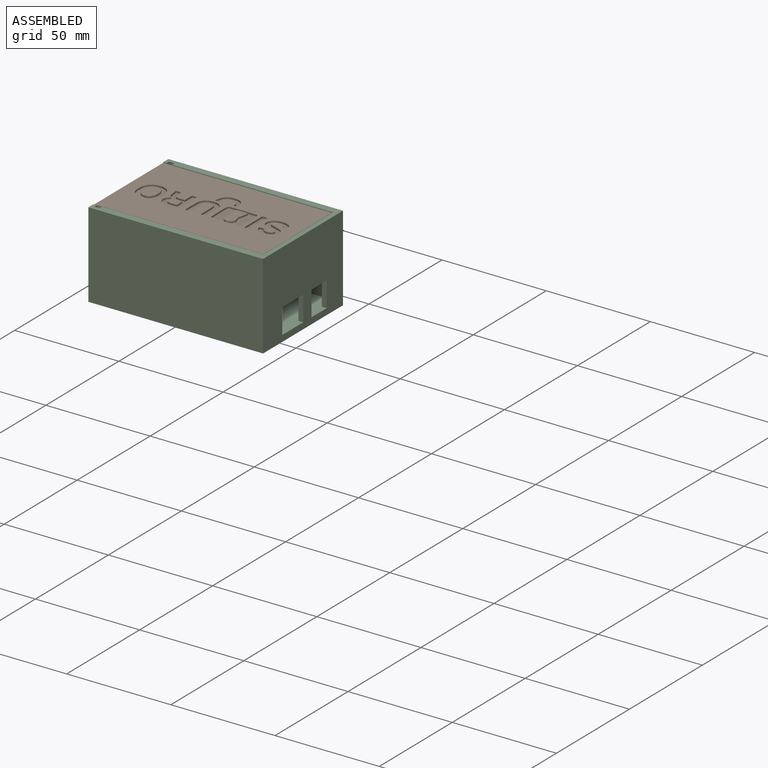
[diagram: assembled view]
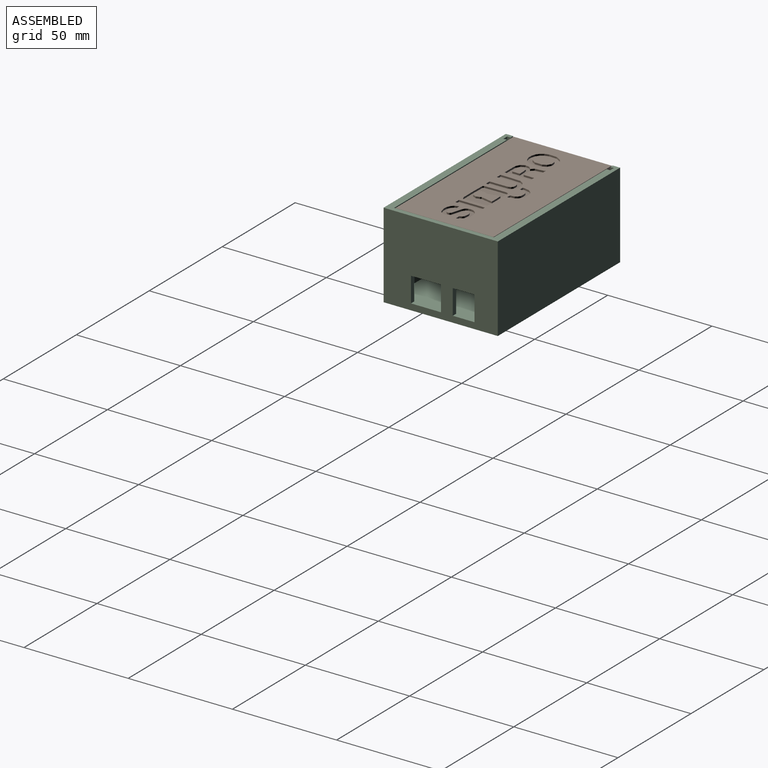
[diagram: assembled view, second angle]
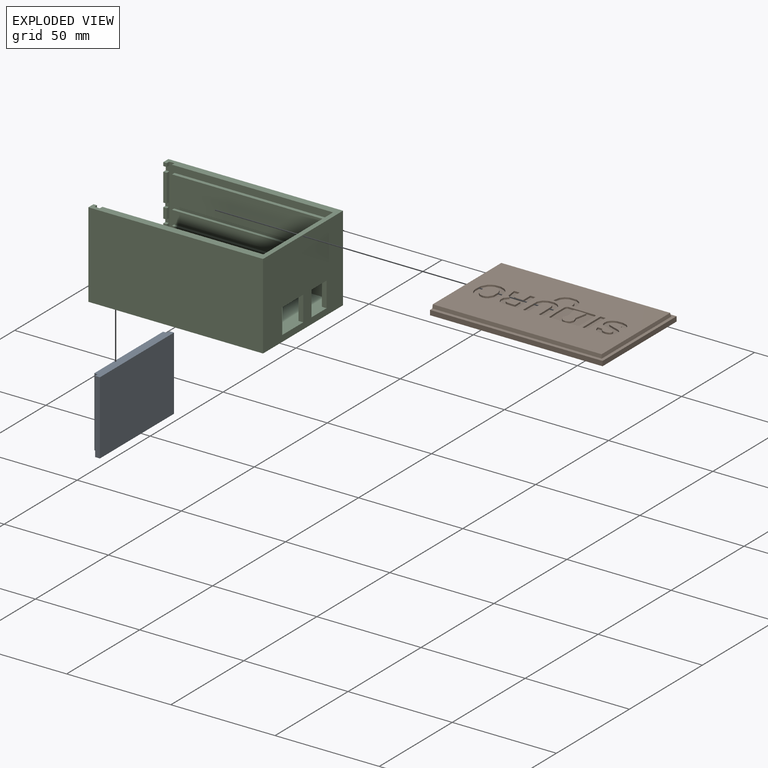
[diagram: exploded view]
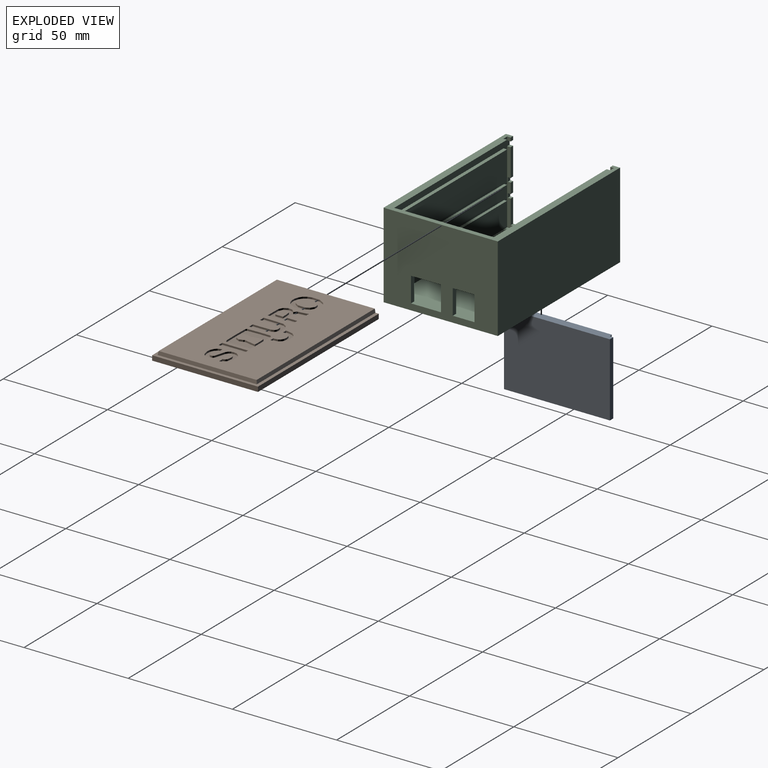
[diagram: exploded view, second angle]
ASSEMBLY  parts=3 mates=2
PART A: 52 faces, bbox 4x50.8x35.2 mm
  f0: plane 47x33.4mm, normal (1,0,0), area 1525.3mm2, adj f6,f7,f8,f9,f10,f11,f12,f13
  f1: plane 50.8x2.3mm, normal (0,0,-1), area 116.8mm2, adj f2,f3,f4,f5
  f2: plane 50.8x35.2mm, normal (1,0,0), area 184.1mm2, adj f1,f3,f5,f6,f7,f8,f9
  f3: plane 35.2x2.3mm, normal (0,1,0), area 81mm2, adj f1,f2,f4,f6
  f4: plane 50.8x35.2mm, normal (-1,0,0), area 1788.2mm2, adj f1,f3,f5,f6
  f5: plane 35.2x2.3mm, normal (0,-1,0), area 81mm2, adj f1,f2,f4,f6
  f6: plane 50.8x4mm, normal (0,0,1), area 197.2mm2, adj f0,f2,f3,f4,f5,f7,f9
  f7: plane 33.7x1.7mm, normal (0.17,-0.98,0), area 57.9mm2, adj f0,f2,f6,f8
  f8: plane 47.6x1.7mm, normal (0.17,0,-0.98), area 81.7mm2, adj f0,f2,f7,f9
  f9: plane 33.7x1.7mm, normal (0.17,0.98,0), area 57.9mm2, adj f0,f2,f6,f8
  f10: plane 1.45x0.8mm, normal (0,1,0), area 1.2mm2, adj f0,f11,f13,f14
  f11: plane 4.45x0.8mm, normal (0,0,1), area 3.6mm2, adj f0,f10,f12,f14
  f12: plane 1.45x0.8mm, normal (0,-1,0), area 1.2mm2, adj f0,f11,f13,f14
  f13: plane 4.45x0.8mm, normal (0,0,-1), area 3.6mm2, adj f0,f10,f12,f14
  f14: plane 4.45x1.45mm, normal (1,0,0), area 6.5mm2, adj f10,f11,f12,f13
  f15: plane 1.45x0.8mm, normal (0,1,0), area 1.2mm2, adj f0,f16,f18,f19
  f16: plane 4.45x0.8mm, normal (0,0,1), area 3.6mm2, adj f0,f15,f17,f19
  f17: plane 1.45x0.8mm, normal (0,-1,0), area 1.2mm2, adj f0,f16,f18,f19
  f18: plane 4.45x0.8mm, normal (0,0,-1), area 3.6mm2, adj f0,f15,f17,f19
  f19: plane 4.45x1.45mm, normal (1,0,0), area 6.5mm2, adj f15,f16,f17,f18
  f20: plane 1.49x0.8mm, normal (0,1,0), area 1.2mm2, adj f0,f21,f39,f40
  f21: plane 1.14x0.8mm, normal (0,-0.01,1), area 0.9mm2, adj f0,f20,f22,f40
  f22: plane 1.38x0.8mm, normal (0,-0.06,1), area 1.1mm2, adj f0,f21,f23,f40
  f23: plane 1.24x0.8mm, normal (0,-0.52,0.85), area 1.2mm2, adj f0,f22,f24,f40
  f24: plane 0.8x0.58mm, normal (0,-0.82,0.57), area 0.6mm2, adj f0,f23,f25,f40
  f25: plane 1.02x0.8mm, normal (0,-0.97,0.26), area 0.8mm2, adj f0,f24,f26,f40
  f26: plane 1.59x0.8mm, normal (0,-0.96,-0.27), area 1.3mm2, adj f0,f25,f27,f40
  f27: plane 1.35x1.01mm, normal (0,-0.6,-0.8), area 1.3mm2, adj f0,f26,f28,f40
  f28: plane 0.8x0.29mm, normal (0,-0.33,-0.94), area 0.2mm2, adj f0,f27,f29,f40
  f29: plane 1.18x0.8mm, normal (0,-0.01,-1), area 0.9mm2, adj f0,f28,f30,f40
  f30: plane 1.18x0.8mm, normal (0,-0.01,-1), area 0.9mm2, adj f0,f29,f31,f40
  f31: plane 1.45x0.8mm, normal (0,1,0), area 1.2mm2, adj f0,f30,f32,f40
  f32: plane 1.08x0.8mm, normal (0,0.01,1), area 0.9mm2, adj f0,f31,f33,f40
  f33: plane 1.08x0.8mm, normal (0,0.01,1), area 0.9mm2, adj f0,f32,f34,f40
  f34: plane 0.8x0.21mm, normal (0,0.44,0.9), area 0.2mm2, adj f0,f33,f35,f40
  f35: plane 0.82x0.8mm, normal (0,0.8,0.6), area 0.8mm2, adj f0,f34,f36,f40
  f36: plane 0.8x0.72mm, normal (0,0.98,-0.19), area 0.6mm2, adj f0,f35,f37,f40
  f37: plane 0.8x0.56mm, normal (0,0.66,-0.75), area 0.6mm2, adj f0,f36,f38,f40
  f38: plane 1.22x0.8mm, normal (0,0.05,-1), area 1mm2, adj f0,f37,f39,f40
  f39: plane 1.05x0.8mm, normal (0,0,-1), area 0.8mm2, adj f0,f20,f38,f40
  f40: plane 5.17x4.44mm, normal (1,0,0), area 13.7mm2, adj f20,f21,f22,f23,f24,f25,f26,f27
  f41: plane 3.72x3.68mm, normal (0,0.7,0.71), area 4.2mm2, adj f0,f42,f50,f51
  f42: plane 2.07x0.8mm, normal (0,0,1), area 1.7mm2, adj f0,f41,f43,f51
  f43: plane 2.23x2.23mm, normal (0,-0.71,-0.71), area 2.5mm2, adj f0,f42,f44,f51
  f44: plane 2.23x2.23mm, normal (0,-0.71,-0.71), area 2.5mm2, adj f0,f43,f45,f51
  f45: plane 2.21x2.21mm, normal (0,-0.71,0.71), area 2.5mm2, adj f0,f44,f46,f51
  f46: plane 2.21x2.21mm, normal (0,-0.71,0.71), area 2.5mm2, adj f0,f45,f47,f51
  f47: plane 2.07x0.8mm, normal (0,0,-1), area 1.7mm2, adj f0,f46,f48,f51
  f48: plane 1.85x1.85mm, normal (0,0.71,-0.71), area 2.1mm2, adj f0,f47,f49,f51
  f49: plane 1.85x1.85mm, normal (0,0.71,-0.71), area 2.1mm2, adj f0,f48,f50,f51
  f50: plane 1.49x0.8mm, normal (0,1,0), area 1.2mm2, adj f0,f41,f49,f51
  f51: plane 8.87x5.8mm, normal (1,0,0), area 17.9mm2, adj f41,f42,f43,f44,f45,f46,f47,f48
PART B: 210 faces, bbox 4x50.8x82.8 mm
  f0: plane 81x47mm, normal (1,0,0), area 3217.7mm2, adj f6,f7,f8,f9,f10,f11,f12,f13
  f1: plane 50.8x2.3mm, normal (0,0,-1), area 116.8mm2, adj f2,f3,f4,f5
  f2: plane 82.8x50.8mm, normal (1,0,0), area 336.4mm2, adj f1,f3,f5,f6,f7,f8,f9
  f3: plane 82.8x2.3mm, normal (0,1,0), area 190.4mm2, adj f1,f2,f4,f6
  f4: plane 82.8x50.8mm, normal (-1,0,0), area 4206.2mm2, adj f1,f3,f5,f6
  f5: plane 82.8x2.3mm, normal (0,-1,0), area 190.4mm2, adj f1,f2,f4,f6
  f6: plane 50.8x4mm, normal (0,0,1), area 197.2mm2, adj f0,f2,f3,f4,f5,f7,f9
  f7: plane 81.3x1.7mm, normal (0.17,-0.98,0), area 140.1mm2, adj f0,f2,f6,f8
  f8: plane 47.6x1.7mm, normal (0.17,0,-0.98), area 81.7mm2, adj f0,f2,f7,f9
  f9: plane 81.3x1.7mm, normal (0.17,0.98,0), area 140.1mm2, adj f0,f2,f6,f8
  f10: plane 2.45x0.8mm, normal (0,-1,0), area 2mm2, adj f0,f11,f13,f14
  f11: plane 12.44x0.8mm, normal (0,0,-1), area 9.9mm2, adj f0,f10,f12,f14
  f12: plane 2.45x0.8mm, normal (0,1,0), area 2mm2, adj f0,f11,f13,f14
  f13: plane 12.44x0.8mm, normal (0,0,1), area 9.9mm2, adj f0,f10,f12,f14
  f14: plane 12.44x2.45mm, normal (1,0,0), area 30.5mm2, adj f10,f11,f12,f13
  f15: plane 1.94x0.8mm, normal (0,-0.95,0.32), area 1.6mm2, adj f0,f16,f35,f36
  f16: plane 2.77x0.8mm, normal (0,-1,-0.05), area 2.2mm2, adj f0,f15,f17,f36
  f17: plane 2.02x1.06mm, normal (0,-0.88,-0.47), area 1.8mm2, adj f0,f16,f18,f36
  f18: plane 1.9x1.12mm, normal (0,-0.51,-0.86), area 1.8mm2, adj f0,f17,f19,f36
  f19: plane 5.05x0.8mm, normal (0,-0.04,-1), area 4mm2, adj f0,f18,f20,f36
  f20: plane 4.55x0.8mm, normal (0,-0.01,-1), area 3.6mm2, adj f0,f19,f21,f36
  f21: plane 2.55x0.8mm, normal (0,1,0), area 2mm2, adj f0,f20,f22,f36
  f22: plane 4.63x0.8mm, normal (0,0.01,1), area 3.7mm2, adj f0,f21,f23,f36
  f23: plane 4.97x0.8mm, normal (0,0.04,1), area 4mm2, adj f0,f22,f24,f36
  f24: plane 1x0.9mm, normal (0,0.74,0.67), area 1.1mm2, adj f0,f23,f25,f36
  f25: plane 1.31x0.8mm, normal (0,0.99,0.15), area 1.1mm2, adj f0,f24,f26,f36
  f26: plane 1.14x0.8mm, normal (0,0.99,-0.12), area 0.9mm2, adj f0,f25,f27,f36
  f27: plane 0.8x0.74mm, normal (0,0.79,-0.61), area 0.8mm2, adj f0,f26,f28,f36
  f28: plane 1.25x0.8mm, normal (0,0.37,-0.93), area 1.1mm2, adj f0,f27,f29,f36
  f29: plane 4.4x0.8mm, normal (0,0.02,-1), area 3.5mm2, adj f0,f28,f30,f36
  f30: plane 4.33x0.8mm, normal (0,0,-1), area 3.5mm2, adj f0,f29,f31,f36
  f31: plane 2.45x0.8mm, normal (0,1,0), area 2mm2, adj f0,f30,f32,f36
  f32: plane 4.46x0.8mm, normal (0,0,1), area 3.6mm2, adj f0,f31,f33,f36
  f33: plane 4.51x0.8mm, normal (0,-0.02,1), area 3.6mm2, adj f0,f32,f34,f36
  f34: plane 1.56x0.8mm, normal (0,-0.25,0.97), area 1.3mm2, adj f0,f33,f35,f36
  f35: plane 1.51x1.47mm, normal (0,-0.7,0.72), area 1.7mm2, adj f0,f15,f34,f36
  f36: plane 12.69x10mm, normal (1,0,0), area 66.9mm2, adj f15,f16,f17,f18,f19,f20,f21,f22
  f37: plane 2.11x1.19mm, normal (0,-0.87,0.49), area 1.9mm2, adj f0,f38,f56,f57
  f38: plane 3.42x0.8mm, normal (0,-1,0), area 2.7mm2, adj f0,f37,f39,f57
  f39: plane 1.77x0.89mm, normal (0,-0.89,-0.45), area 1.6mm2, adj f0,f38,f40,f57
  f40: plane 1.48x1.26mm, normal (0,-0.65,-0.76), area 1.6mm2, adj f0,f39,f41,f57
  f41: plane 2.51x0.8mm, normal (0,-0.22,-0.97), area 2.1mm2, adj f0,f40,f42,f57
  f42: plane 0.91x0.8mm, normal (0,0,-1), area 0.7mm2, adj f0,f41,f43,f57
  f43: plane 1.95x0.8mm, normal (0,1,0), area 1.6mm2, adj f0,f42,f44,f57
  f44: plane 0.84x0.8mm, normal (0,0,1), area 0.7mm2, adj f0,f43,f45,f57
  f45: plane 1.31x0.8mm, normal (0,0.13,0.99), area 1.1mm2, adj f0,f44,f46,f57
  f46: plane 1.55x1.42mm, normal (0,0.68,0.74), area 1.7mm2, adj f0,f45,f47,f57
  f47: plane 1.62x0.8mm, normal (0,0.99,0.16), area 1.3mm2, adj f0,f46,f48,f57
  f48: plane 1.62x0.8mm, normal (0,1,-0.09), area 1.3mm2, adj f0,f47,f49,f57
  f49: plane 1.06x0.8mm, normal (0,0.84,-0.54), area 1mm2, adj f0,f48,f50,f57
  f50: plane 1.03x0.8mm, normal (0,0.54,-0.84), area 1mm2, adj f0,f49,f51,f57
  f51: plane 1.24x0.8mm, normal (0,0.14,-0.99), area 1mm2, adj f0,f50,f52,f57
  f52: plane 0.87x0.8mm, normal (0,0.05,-1), area 0.7mm2, adj f0,f51,f53,f57
  f53: plane 1.95x0.8mm, normal (0,1,0), area 1.6mm2, adj f0,f52,f54,f57
  f54: plane 0.99x0.8mm, normal (0,-0.05,1), area 0.8mm2, adj f0,f53,f55,f57
  f55: plane 1.54x0.8mm, normal (0,-0.14,0.99), area 1.2mm2, adj f0,f54,f56,f57
  f56: plane 2.06x1.28mm, normal (0,-0.53,0.85), area 1.9mm2, adj f0,f37,f55,f57
  f57: plane 10.69x5.79mm, normal (1,0,0), area 29mm2, adj f37,f38,f39,f40,f41,f42,f43,f44
  f58: plane 2.95x0.8mm, normal (0,1,0.05), area 2.4mm2, adj f59,f89,f90,f207
  f59: plane 3x0.8mm, normal (0,1,-0.02), area 2.4mm2, adj f58,f60,f90,f207
  f60: plane 2x0.8mm, normal (0,-0.18,-0.98), area 1.6mm2, adj f59,f61,f90,f207
  f61: plane 2.84x0.8mm, normal (0,-0.2,-0.98), area 2.3mm2, adj f60,f62,f90,f207
  f62: plane 0.91x0.8mm, normal (0,-0.2,-0.98), area 0.7mm2, adj f61,f63,f90,f207
  f63: plane 0.8x0.39mm, normal (0,0.61,-0.79), area 0.4mm2, adj f62,f64,f90,f207
  f64: plane 1.87x0.8mm, normal (0,0.28,-0.96), area 1.6mm2, adj f63,f65,f90,f207
  f65: plane 1.71x0.8mm, normal (0,-0.4,-0.92), area 1.5mm2, adj f64,f66,f90,f207
  f66: plane 1.71x0.8mm, normal (0,-0.91,-0.41), area 1.5mm2, adj f65,f67,f90,f207
  f67: plane 1.53x0.8mm, normal (0,-0.98,0.2), area 1.2mm2, adj f66,f68,f90,f207
  f68: plane 1.14x1.07mm, normal (0,-0.68,0.73), area 1.2mm2, adj f67,f69,f90,f207
  f69: plane 1.22x0.8mm, normal (0,-0.23,0.97), area 1mm2, adj f68,f70,f90,f207
  f70: plane 1.77x0.8mm, normal (0,0.33,0.94), area 1.5mm2, adj f69,f71,f90,f207
  f71: plane 0.8x0.31mm, normal (0,0.62,0.78), area 0.3mm2, adj f70,f72,f90,f207
  f72: plane 2.75x0.8mm, normal (0,-0.21,0.98), area 2.2mm2, adj f71,f89,f90,f207
  f73: plane 6.48x0.8mm, normal (0,-1,0), area 5.2mm2, adj f0,f74,f88,f90
  f74: plane 0.8x0.29mm, normal (0,-0.83,-0.56), area 0.3mm2, adj f0,f73,f75,f90
  f75: plane 0.8x0.35mm, normal (0,-0.77,-0.64), area 0.4mm2, adj f0,f74,f76,f90
  f76: plane 0.8x0.69mm, normal (0,-0.24,-0.97), area 0.6mm2, adj f0,f75,f77,f90
  f77: plane 5.15x0.8mm, normal (0,-0.01,-1), area 4.1mm2, adj f0,f76,f78,f90
  f78: plane 5.58x0.8mm, normal (0,0.04,-1), area 4.5mm2, adj f0,f77,f79,f90
  f79: plane 0.8x0.47mm, normal (0,0.77,-0.64), area 0.5mm2, adj f0,f78,f80,f90
  f80: plane 6.66x0.8mm, normal (0,1,-0.02), area 5.3mm2, adj f0,f79,f81,f90
  f81: plane 5.99x0.8mm, normal (0,1,0.01), area 4.8mm2, adj f0,f80,f82,f90
  f82: plane 1.14x0.8mm, normal (0,0.94,0.34), area 1mm2, adj f0,f81,f83,f90
  f83: plane 0.8x0.23mm, normal (0,0.68,0.73), area 0.2mm2, adj f0,f82,f84,f90
  f84: plane 5.46x0.8mm, normal (0,0,1), area 4.4mm2, adj f0,f83,f85,f90
  f85: plane 5.74x0.8mm, normal (0,-0.03,1), area 4.6mm2, adj f0,f84,f86,f90
  f86: plane 0.8x0.33mm, normal (0,-0.63,0.78), area 0.3mm2, adj f0,f85,f87,f90
  f87: plane 0.8x0.78mm, normal (0,-0.98,0.2), area 0.6mm2, adj f0,f86,f88,f90
  f88: plane 6.16x0.8mm, normal (0,-1,0.01), area 4.9mm2, adj f0,f73,f87,f90
  f89: plane 2.9x0.8mm, normal (0,-0.2,0.98), area 2.4mm2, adj f58,f72,f90,f207
  f90: plane 14.68x12.44mm, normal (1,0,0), area 131.4mm2, adj f58,f59,f60,f61,f62,f63,f64,f65
  f91: plane 2.36x0.8mm, normal (0,-0.96,0.29), area 2mm2, adj f0,f92,f136,f137
  f92: plane 2.66x0.8mm, normal (0,-1,-0.05), area 2.1mm2, adj f0,f91,f93,f137
  f93: plane 1.29x0.8mm, normal (0,-0.93,-0.36), area 1.1mm2, adj f0,f92,f94,f137
  f94: plane 1.01x0.8mm, normal (0,-0.79,-0.61), area 1mm2, adj f0,f93,f95,f137
  f95: plane 1.03x0.8mm, normal (0,-0.56,-0.83), area 1mm2, adj f0,f94,f96,f137
  f96: plane 1.34x0.8mm, normal (0,-0.17,-0.99), area 1.1mm2, adj f0,f95,f97,f137
  f97: plane 1.29x0.8mm, normal (0,0.1,-1), area 1mm2, adj f0,f96,f98,f137
  f98: plane 0.97x0.8mm, normal (0,0.53,-0.85), area 0.9mm2, adj f0,f97,f99,f137
  f99: plane 1.18x0.8mm, normal (0,0.84,-0.55), area 1.1mm2, adj f0,f98,f100,f137
  f100: plane 2.67x0.8mm, normal (0,0.96,-0.28), area 2.2mm2, adj f0,f99,f101,f137
  f101: plane 2.54x0.8mm, normal (0,0.96,-0.28), area 2.1mm2, adj f0,f100,f102,f137
  f102: plane 0.8x0.54mm, normal (0,0.64,-0.77), area 0.6mm2, adj f0,f101,f103,f137
  f103: plane 0.8x0.69mm, normal (0,0.15,-0.99), area 0.6mm2, adj f0,f102,f104,f137
  f104: plane 0.8x0.67mm, normal (0,-0.32,-0.95), area 0.6mm2, adj f0,f103,f105,f137
  f105: plane 0.8x0.54mm, normal (0,-0.74,-0.68), area 0.6mm2, adj f0,f104,f106,f137
  f106: plane 1.6x0.8mm, normal (0,-0.98,-0.2), area 1.3mm2, adj f0,f105,f107,f137
  f107: plane 1.58x0.8mm, normal (0,-0.98,0.19), area 1.3mm2, adj f0,f106,f108,f137
  f108: plane 0.8x0.73mm, normal (0,-0.74,0.67), area 0.8mm2, adj f0,f107,f109,f137
  f109: plane 0.85x0.8mm, normal (0,-0.34,0.94), area 0.7mm2, adj f0,f108,f110,f137
  f110: plane 1.17x0.8mm, normal (0,-1,0.09), area 0.9mm2, adj f0,f109,f111,f137
  f111: plane 1.17x0.8mm, normal (0,-1,0), area 0.9mm2, adj f0,f110,f112,f137
  f112: plane 0.8x0.47mm, normal (0,0.15,-0.99), area 0.4mm2, adj f0,f111,f113,f137
  f113: plane 1.46x0.8mm, normal (0,0.36,-0.93), area 1.3mm2, adj f0,f112,f114,f137
  f114: plane 1.1x1.1mm, normal (0,0.71,-0.7), area 1.2mm2, adj f0,f113,f115,f137
  f115: plane 1.55x0.8mm, normal (0,0.92,-0.39), area 1.3mm2, adj f0,f114,f116,f137
  f116: plane 1.9x0.8mm, normal (0,1,-0.09), area 1.5mm2, adj f0,f115,f117,f137
  f117: plane 2.51x0.8mm, normal (0,0.97,0.24), area 2.1mm2, adj f0,f116,f118,f137
  f118: plane 0.9x0.8mm, normal (0,0.8,0.6), area 0.9mm2, adj f0,f117,f119,f137
  f119: plane 0.95x0.8mm, normal (0,0.56,0.83), area 0.9mm2, adj f0,f118,f120,f137
  f120: plane 1.58x0.8mm, normal (0,0.17,0.99), area 1.3mm2, adj f0,f119,f121,f137
  f121: plane 1.49x0.8mm, normal (0,-0.16,0.99), area 1.2mm2, adj f0,f120,f122,f137
  f122: plane 1.22x1.2mm, normal (0,-0.7,0.71), area 1.4mm2, adj f0,f121,f123,f137
  f123: plane 2.87x0.92mm, normal (0,-0.95,0.31), area 2.4mm2, adj f0,f122,f124,f137
  f124: plane 2.98x1.07mm, normal (0,-0.94,0.34), area 2.5mm2, adj f0,f123,f125,f137
  f125: plane 0.8x0.78mm, normal (0,-0.33,0.95), area 0.7mm2, adj f0,f124,f126,f137
  f126: plane 0.87x0.8mm, normal (0,0.19,0.98), area 0.7mm2, adj f0,f125,f127,f137
  f127: plane 0.8x0.7mm, normal (0,0.77,0.64), area 0.7mm2, adj f0,f126,f128,f137
  f128: plane 1.12x0.8mm, normal (0,0.96,0.27), area 0.9mm2, adj f0,f127,f129,f137
  f129: plane 2.45x0.8mm, normal (0,0.99,-0.13), area 2mm2, adj f0,f128,f130,f137
  f130: plane 0.8x0.67mm, normal (0,0.77,-0.64), area 0.7mm2, adj f0,f129,f131,f137
  f131: plane 0.8x0.77mm, normal (0,0.4,-0.91), area 0.7mm2, adj f0,f130,f132,f137
  f132: plane 0.8x0.32mm, normal (0,0.16,-0.99), area 0.3mm2, adj f0,f131,f133,f137
  f133: plane 2.34x0.8mm, normal (0,1,0), area 1.9mm2, adj f0,f132,f134,f137
  f134: plane 0.8x0.28mm, normal (0,-0.16,0.99), area 0.2mm2, adj f0,f133,f135,f137
  f135: plane 1.74x0.8mm, normal (0,-0.33,0.94), area 1.5mm2, adj f0,f134,f136,f137
  f136: plane 1.24x1.16mm, normal (0,-0.73,0.68), area 1.4mm2, adj f0,f91,f135,f137
  f137: plane 13x10.13mm, normal (1,0,0), area 66.8mm2, adj f91,f92,f93,f94,f95,f96,f97,f98
  f138: plane 2.05x0.8mm, normal (0,1,0.01), area 1.6mm2, adj f139,f170,f171,f208
  f139: plane 3.65x0.8mm, normal (0,0,-1), area 2.9mm2, adj f138,f140,f171,f208
  f140: plane 1.89x0.8mm, normal (0,-1,0), area 1.5mm2, adj f139,f141,f171,f208
  f141: plane 2.14x0.8mm, normal (0,-1,0.04), area 1.7mm2, adj f140,f142,f171,f208
  f142: plane 0.86x0.8mm, normal (0,-0.89,0.45), area 0.8mm2, adj f141,f143,f171,f208
  f143: plane 1.32x0.8mm, normal (0,-0.32,0.95), area 1.1mm2, adj f142,f144,f171,f208
  f144: plane 0.96x0.8mm, normal (0,0.19,0.98), area 0.8mm2, adj f143,f145,f171,f208
  f145: plane 0.8x0.61mm, normal (0,0.73,0.69), area 0.7mm2, adj f144,f170,f171,f208
  f146: plane 2.37x0.8mm, normal (0,-1,0), area 1.9mm2, adj f0,f147,f169,f171
  f147: plane 5.01x0.8mm, normal (0,0,-1), area 4mm2, adj f0,f146,f148,f171
  f148: plane 1.88x0.8mm, normal (0,-1,0.02), area 1.5mm2, adj f0,f147,f149,f171
  f149: plane 1.72x0.8mm, normal (0,-1,0.05), area 1.4mm2, adj f0,f148,f150,f171
  f150: plane 0.91x0.8mm, normal (0,-0.95,0.31), area 0.8mm2, adj f0,f149,f151,f171
  f151: plane 0.8x0.74mm, normal (0,-0.45,0.89), area 0.7mm2, adj f0,f150,f152,f171
  f152: plane 1.42x0.8mm, normal (0,-0.08,1), area 1.1mm2, adj f0,f151,f153,f171
  f153: plane 1.97x0.8mm, normal (0,-0.08,1), area 1.6mm2, adj f0,f152,f154,f171
  f154: plane 0.8x0.47mm, normal (0,-0.2,0.98), area 0.4mm2, adj f0,f153,f155,f171
  f155: plane 1.35x0.8mm, normal (0,-1,0), area 1.1mm2, adj f0,f154,f156,f171
  f156: plane 1.35x0.8mm, normal (0,-1,-0.05), area 1.1mm2, adj f0,f155,f157,f171
  f157: plane 0.8x0.26mm, normal (0,0.63,-0.78), area 0.3mm2, adj f0,f156,f158,f171
  f158: plane 2.26x0.8mm, normal (0,0.15,-0.99), area 1.8mm2, adj f0,f157,f159,f171
  f159: plane 2.11x0.8mm, normal (0,0.13,-0.99), area 1.7mm2, adj f0,f158,f160,f171
  f160: plane 0.97x0.88mm, normal (0,0.68,-0.74), area 1mm2, adj f0,f159,f161,f171
  f161: plane 0.8x0.42mm, normal (0,0.79,-0.61), area 0.4mm2, adj f0,f160,f162,f171
  f162: plane 0.8x0.34mm, normal (0,-0.81,-0.59), area 0.3mm2, adj f0,f161,f163,f171
  f163: plane 1.32x1.26mm, normal (0,-0.69,-0.72), area 1.5mm2, adj f0,f162,f164,f171
  f164: plane 1.94x0.8mm, normal (0,-0.14,-0.99), area 1.6mm2, adj f0,f163,f165,f171
  f165: plane 1.9x0.96mm, normal (0,0.45,-0.89), area 1.7mm2, adj f0,f164,f166,f171
  f166: plane 1.96x0.97mm, normal (0,0.9,-0.44), area 1.8mm2, adj f0,f165,f167,f171
  f167: plane 3.79x0.8mm, normal (0,1,-0.02), area 3mm2, adj f0,f166,f168,f171
  f168: plane 3.37x0.8mm, normal (0,1,0), area 2.7mm2, adj f0,f167,f169,f171
  f169: plane 12.44x0.8mm, normal (0,0,1), area 9.9mm2, adj f0,f146,f168,f171
  f170: plane 2.47x0.8mm, normal (0,1,0.1), area 2mm2, adj f138,f145,f171,f208
  f171: plane 12.44x10.32mm, normal (1,0,0), area 75.6mm2, adj f138,f139,f140,f141,f142,f143,f144,f145
  f172: plane 1.29x0.8mm, normal (0,0.98,0.22), area 1.1mm2, adj f173,f205,f206,f209
  f173: plane 1.11x0.8mm, normal (0,1,-0.07), area 0.9mm2, adj f172,f174,f206,f209
  f174: plane 1.57x0.97mm, normal (0,0.85,-0.52), area 1.5mm2, adj f173,f175,f206,f209
  f175: plane 1.8x0.89mm, normal (0,0.44,-0.9), area 1.6mm2, adj f174,f176,f206,f209
  f176: plane 3.46x0.8mm, normal (0,-0.01,-1), area 2.8mm2, adj f175,f177,f206,f209
  f177: plane 2.01x1.23mm, normal (0,-0.52,-0.85), area 1.9mm2, adj f176,f178,f206,f209
  f178: plane 0.96x0.8mm, normal (0,-0.88,-0.48), area 0.9mm2, adj f177,f179,f206,f209
  f179: plane 1.17x0.8mm, normal (0,-0.99,-0.15), area 0.9mm2, adj f178,f180,f206,f209
  f180: plane 1.56x0.8mm, normal (0,-0.98,0.21), area 1.3mm2, adj f179,f181,f206,f209
  f181: plane 1.14x0.98mm, normal (0,-0.76,0.65), area 1.2mm2, adj f180,f182,f206,f209
  f182: plane 1.55x0.8mm, normal (0,-0.4,0.92), area 1.3mm2, adj f181,f183,f206,f209
  f183: plane 2.04x0.8mm, normal (0,-0.07,1), area 1.6mm2, adj f182,f184,f206,f209
  f184: plane 2.44x0.8mm, normal (0,0.23,0.97), area 2mm2, adj f183,f205,f206,f209
  f185: plane 2.36x0.85mm, normal (0,-0.94,0.34), area 2mm2, adj f0,f186,f204,f206
  f186: plane 2.62x0.8mm, normal (0,-1,-0.07), area 2.1mm2, adj f0,f185,f187,f206
  f187: plane 1.4x0.8mm, normal (0,-0.93,-0.37), area 1.2mm2, adj f0,f186,f188,f206
  f188: plane 1.13x0.85mm, normal (0,-0.8,-0.6), area 1.1mm2, adj f0,f187,f189,f206
  f189: plane 2.56x1.44mm, normal (0,-0.49,-0.87), area 2.4mm2, adj f0,f188,f190,f206
  f190: plane 3.79x0.8mm, normal (0,-0.05,-1), area 3mm2, adj f0,f189,f191,f206
  f191: plane 1.92x0.8mm, normal (0,0.29,-0.96), area 1.6mm2, adj f0,f190,f192,f206
  f192: plane 1.49x1.04mm, normal (0,0.57,-0.82), area 1.5mm2, adj f0,f191,f193,f206
  f193: plane 1.48x1.04mm, normal (0,0.82,-0.57), area 1.4mm2, adj f0,f192,f194,f206
  f194: plane 1.91x0.8mm, normal (0,0.96,-0.28), area 1.6mm2, adj f0,f193,f195,f206
  f195: plane 1.65x0.8mm, normal (0,1,-0.01), area 1.3mm2, adj f0,f194,f196,f206
  f196: plane 1.6x0.8mm, normal (0,0.97,0.26), area 1.3mm2, adj f0,f195,f197,f206
  f197: plane 1.4x0.81mm, normal (0,0.87,0.5), area 1.3mm2, adj f0,f196,f198,f206
  f198: plane 1.12x1.06mm, normal (0,0.69,0.73), area 1.2mm2, adj f0,f197,f199,f206
  f199: plane 1.82x0.8mm, normal (0,0.4,0.92), area 1.6mm2, adj f0,f198,f200,f206
  f200: plane 2.32x0.8mm, normal (0,0.11,0.99), area 1.9mm2, adj f0,f199,f201,f206
  f201: plane 1.85x0.8mm, normal (0,-0.08,1), area 1.5mm2, adj f0,f200,f202,f206
  f202: plane 1.53x0.8mm, normal (0,-0.3,0.95), area 1.3mm2, adj f0,f201,f203,f206
  f203: plane 1.24x0.82mm, normal (0,-0.55,0.83), area 1.2mm2, adj f0,f202,f204,f206
  f204: plane 1.18x0.99mm, normal (0,-0.76,0.64), area 1.2mm2, adj f0,f185,f203,f206
  f205: plane 1.47x1.38mm, normal (0,0.73,0.69), area 1.6mm2, adj f172,f184,f206,f209
  f206: plane 12.96x11.77mm, normal (1,0,0), area 73.1mm2, adj f172,f173,f174,f175,f176,f177,f178,f179
  f207: plane 10.55x5.95mm, normal (1,0,0), area 47.9mm2, adj f58,f59,f60,f61,f62,f63,f64,f65
  f208: plane 5.33x3.65mm, normal (1,0,0), area 17.6mm2, adj f138,f139,f140,f141,f142,f143,f144,f145
  f209: plane 9.02x6.92mm, normal (1,0,0), area 50.4mm2, adj f172,f173,f174,f175,f176,f177,f178,f179
PART C: 72 faces, bbox 83.8x54.8x41 mm
  f0: plane 47.8x33.8mm, normal (-1,0,0), area 1317.9mm2, adj f16,f19,f28,f31,f32,f33,f34,f35
  f1: plane 1.7x1.7mm, normal (0,1,0), area 2.9mm2, adj f6,f9,f26,f65
  f2: plane 1.7x1.7mm, normal (0,-1,0), area 2.9mm2, adj f9,f14,f26,f67
  f3: plane 77.3x1.7mm, normal (0,1,0), area 131.4mm2, adj f8,f17,f26,f70
  f4: plane 77.3x1.7mm, normal (0,-1,0), area 131.4mm2, adj f15,f17,f26,f70
  f5: plane 51.2x35.3mm, normal (1,0,0), area 180.5mm2, adj f10,f11,f12,f13,f20,f21,f24,f25
  f6: plane 1.7x1.7mm, normal (1,0,0), area 2.9mm2, adj f1,f20,f26,f65
  f7: plane 51.2x35.3mm, normal (-1,0,0), area 180.5mm2, adj f16,f19,f20,f25,f28,f30,f49,f50
  f8: plane 1.7x1.7mm, normal (-1,0,0), area 2.9mm2, adj f3,f20,f26,f70
  f9: plane 54.8x41mm, normal (-1,0,0), area 410.7mm2, adj f1,f2,f10,f11,f12,f13,f20,f21
  f10: plane 4.95x1.7mm, normal (0,1,0), area 8.4mm2, adj f5,f9,f41,f45
  f11: plane 13.35x1.7mm, normal (0,1,0), area 22.7mm2, adj f5,f9,f42,f66
  f12: plane 13.35x1.7mm, normal (0,-1,0), area 22.7mm2, adj f5,f9,f48,f68
  f13: plane 4.95x1.7mm, normal (0,-1,0), area 8.4mm2, adj f5,f9,f38,f47
  f14: plane 1.7x1.7mm, normal (1,0,0), area 2.9mm2, adj f2,f25,f26,f67
  f15: plane 1.7x1.7mm, normal (-1,0,0), area 2.9mm2, adj f4,f25,f26,f70
  f16: plane 77.3x33.8mm, normal (0,1,0), area 2305.5mm2, adj f0,f7,f28,f49,f50,f52,f53,f54
  f17: plane 47.8x1.7mm, normal (-1,0,0), area 81.3mm2, adj f3,f4,f26,f70
  f18: plane 54.8x41mm, normal (1,0,0), area 1949.1mm2, adj f22,f23,f26,f27,f28,f31,f32,f33
  f19: plane 77.3x33.8mm, normal (0,-1,0), area 2305.5mm2, adj f0,f7,f28,f57,f58,f60,f61,f63
  f20: plane 83x39.5mm, normal (0,1,0), area 300mm2, adj f5,f6,f7,f8,f9,f26,f30,f65
  f21: plane 11.5x1.7mm, normal (0,1,0), area 19.5mm2, adj f5,f9,f29,f44
  f22: plane 83.8x41mm, normal (0,-1,0), area 3435.8mm2, adj f9,f18,f26,f27
  f23: plane 83.8x41mm, normal (0,1,0), area 3435.8mm2, adj f9,f18,f26,f27
  f24: plane 11.5x1.7mm, normal (0,-1,0), area 19.5mm2, adj f5,f9,f29,f39
  f25: plane 83x39.5mm, normal (0,-1,0), area 300mm2, adj f5,f7,f9,f14,f15,f26,f30,f67
  f26: plane 83.8x54.8mm, normal (0,0,1), area 688mm2, adj f1,f2,f3,f4,f6,f8,f9,f14
  f27: plane 83.8x54.8mm, normal (0,0,-1), area 4592.2mm2, adj f9,f18,f22,f23
  f28: plane 79.6x47.8mm, normal (0,0,1), area 3752mm2, adj f0,f7,f16,f18,f19,f31,f32,f34
  f29: plane 47.8x1.7mm, normal (0,0,1), area 81.3mm2, adj f5,f9,f21,f24
  f30: plane 51.2x2.5mm, normal (0,0,1), area 128mm2, adj f5,f7,f20,f25
  f31: plane 12x2.3mm, normal (0,1,0), area 27.6mm2, adj f0,f18,f28,f33
  f32: plane 12x2.3mm, normal (0,-1,0), area 27.6mm2, adj f0,f18,f28,f33
  f33: plane 10.4x2.3mm, normal (0,0,-1), area 23.9mm2, adj f0,f18,f31,f32
  f34: plane 12x2.3mm, normal (0,1,0), area 27.6mm2, adj f0,f18,f28,f36
  f35: plane 12x2.3mm, normal (0,-1,0), area 27.6mm2, adj f0,f18,f28,f36
  f36: plane 14.41x2.3mm, normal (0,0,-1), area 33.1mm2, adj f0,f18,f34,f35
  f37: plane 2x1.7mm, normal (0,-1,0), area 3.4mm2, adj f5,f9,f38,f39
  f38: plane 1.7x1.4mm, normal (0,0,-1), area 2.4mm2, adj f5,f9,f13,f37
  f39: plane 1.7x1.4mm, normal (0,0,1), area 2.4mm2, adj f5,f9,f24,f37
  f40: plane 2x1.7mm, normal (0,1,0), area 3.4mm2, adj f5,f9,f41,f42
  f41: plane 1.7x1.4mm, normal (0,0,1), area 2.4mm2, adj f5,f9,f10,f40
  f42: plane 1.7x1.4mm, normal (0,0,-1), area 2.4mm2, adj f5,f9,f11,f40
  f43: plane 2x1.7mm, normal (0,1,0), area 3.4mm2, adj f5,f9,f44,f45
  f44: plane 1.7x1.4mm, normal (0,0,1), area 2.4mm2, adj f5,f9,f21,f43
  f45: plane 1.7x1.4mm, normal (0,0,-1), area 2.4mm2, adj f5,f9,f10,f43
  f46: plane 2x1.7mm, normal (0,-1,0), area 3.4mm2, adj f5,f9,f47,f48
  f47: plane 1.7x1.4mm, normal (0,0,1), area 2.4mm2, adj f5,f9,f13,f46
  f48: plane 1.7x1.4mm, normal (0,0,-1), area 2.4mm2, adj f5,f9,f12,f46
  f49: plane 76.8x1.4mm, normal (0,0,-1), area 107.5mm2, adj f7,f16,f51,f52
  f50: plane 76.8x1.4mm, normal (0,0,1), area 107.5mm2, adj f7,f16,f51,f52
  f51: plane 76.8x2mm, normal (0,1,0), area 153.6mm2, adj f7,f49,f50,f52
  f52: plane 2x1.4mm, normal (-1,0,0), area 2.8mm2, adj f16,f49,f50,f51
  f53: plane 76.8x1.4mm, normal (0,0,-1), area 107.5mm2, adj f7,f16,f55,f56
  f54: plane 76.8x1.4mm, normal (0,0,1), area 107.5mm2, adj f7,f16,f55,f56
  f55: plane 76.8x2mm, normal (0,1,0), area 153.6mm2, adj f7,f53,f54,f56
  f56: plane 2x1.4mm, normal (-1,0,0), area 2.8mm2, adj f16,f53,f54,f55
  f57: plane 76.8x1.4mm, normal (0,0,1), area 107.5mm2, adj f7,f19,f59,f60
  f58: plane 76.8x1.4mm, normal (0,0,-1), area 107.5mm2, adj f7,f19,f59,f60
  f59: plane 76.8x2mm, normal (0,-1,0), area 153.6mm2, adj f7,f57,f58,f60
  f60: plane 2x1.4mm, normal (-1,0,0), area 2.8mm2, adj f19,f57,f58,f59
  f61: plane 76.8x1.4mm, normal (0,0,-1), area 107.5mm2, adj f7,f19,f62,f64
  f62: plane 76.8x2mm, normal (0,-1,0), area 153.6mm2, adj f7,f61,f63,f64
  f63: plane 76.8x1.4mm, normal (0,0,1), area 107.5mm2, adj f7,f19,f62,f64
  f64: plane 2x1.4mm, normal (-1,0,0), area 2.8mm2, adj f19,f61,f62,f63
  f65: plane 1.7x1.7mm, normal (0,0,-1), area 2.9mm2, adj f1,f6,f9,f20
  f66: plane 1.7x1.7mm, normal (0,0,1), area 2.9mm2, adj f5,f9,f11,f20
  f67: plane 1.7x1.7mm, normal (0,0,-1), area 2.9mm2, adj f2,f9,f14,f25
  f68: plane 1.7x1.7mm, normal (0,0,1), area 2.9mm2, adj f5,f9,f12,f25
  f69: plane 78.8x51.2mm, normal (0,0,1), area 339.6mm2, adj f0,f7,f16,f19,f20,f25,f71
  f70: plane 78.8x51.2mm, normal (0,0,-1), area 339.6mm2, adj f3,f4,f8,f15,f17,f20,f25,f71
  f71: plane 51.2x2.5mm, normal (-1,0,0), area 128mm2, adj f20,f25,f69,f70
PLACE A rot(axis=(0,0,-1),180deg) t=(19.26,-33.42,113.05)mm
PLACE B rot(axis=(0,-1,0),90deg) t=(76.69,21.72,126.89)mm
PLACE C t=(36.69,-5.85,111.45)mm fixed
MATE slider B.f1 <-> C.f71  axis (1,0,0) through (76.69,-5.85,149.5)mm
MATE slider C.f30 <-> A.f6  axis (0,0,1) through (-3.36,-5.85,112.95)mm
